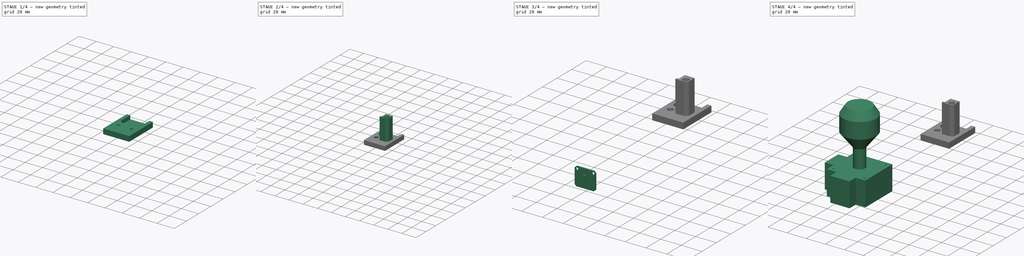
[diagram: build sequence overview — one tinted view per stage of 4, left to right]
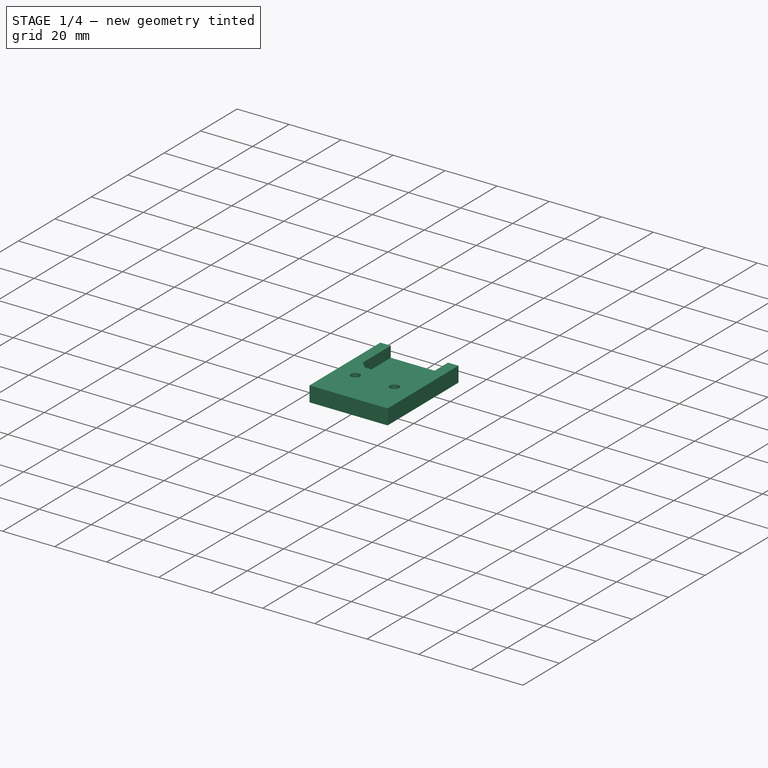
[diagram: stage 1 of 4 — iso view after this stage's code; geometry added in this stage tinted green]
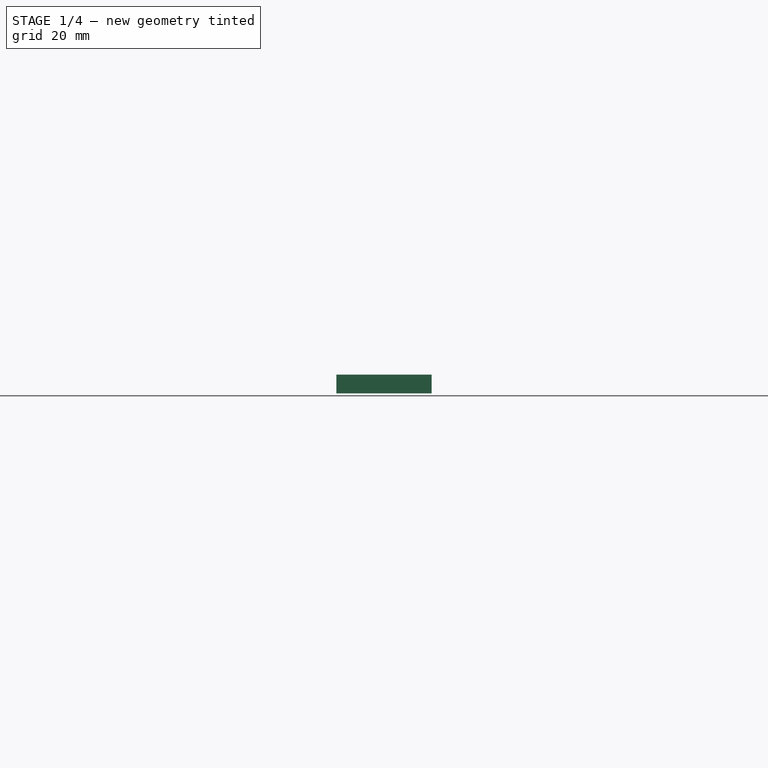
[diagram: stage 1 of 4 — front view after this stage's code; geometry added in this stage tinted green]
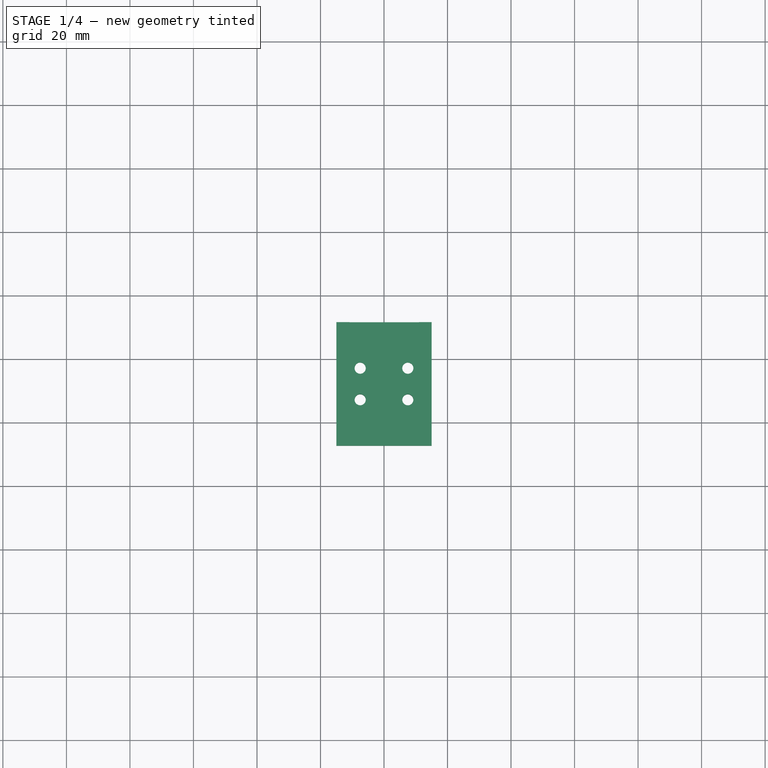
[diagram: stage 1 of 4 — top view after this stage's code; geometry added in this stage tinted green]
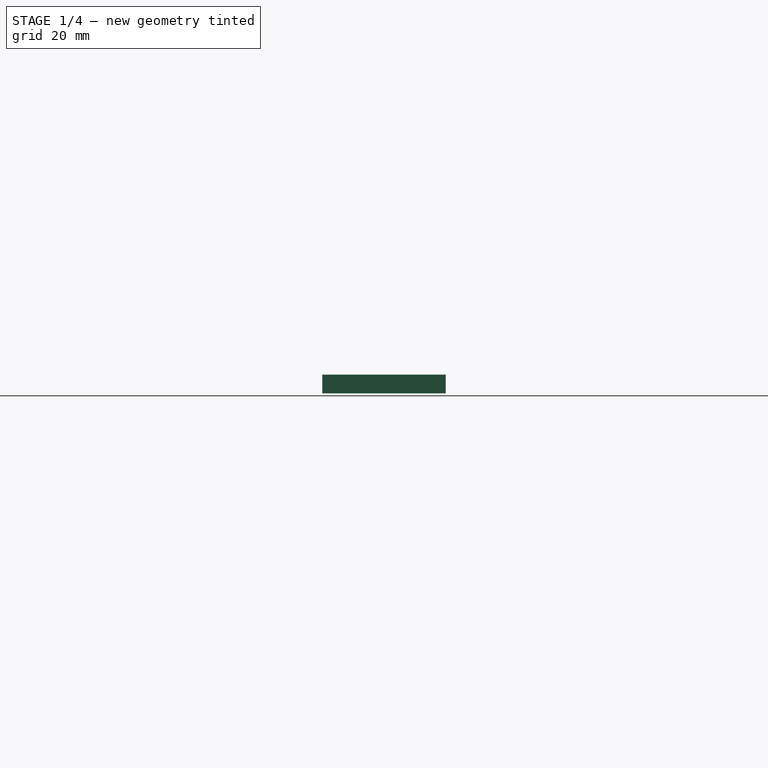
[diagram: stage 1 of 4 — right view after this stage's code; geometry added in this stage tinted green]
FCSTD DOCUMENT  (FreeCAD 0.20R29410 (Git))
Label: v6.1M
License: All rights reserved
LicenseURL: http://en.wikipedia.org/wiki/All_rights_reserved
objects: Sketcher::SketchObject×16, Spreadsheet::Sheet×11, PartDesign::Pad×9, PartDesign::Pocket×6, PartDesign::Body×5, PartDesign::LinearPattern×2, PartDesign::ShapeBinder×2, App::DocumentObjectGroup×2, PartDesign::Revolution×1
note: 57 computed .brp shape members not serialized (recipe doc carries the construction recipe); baked Part::Feature solids carry a one-line shape summary decoded from their .brp

FEATURE [PartDesign::Body] Body007  label="Y Sensor"
  Group = -> [Sketch017,Pad008,Sketch018,Pad009]
  Origin = -> Origin007
  Tip = -> Pad009
FEATURE [Spreadsheet::Sheet] Spreadsheet009  label="Screws"
  cells = A1=Screw Name; B1=M3x8; A2=Body Diameter Without Grooves; B2=2; A3=Body Diameter With Grooves; B3=2.6; A4=Body Diameter Sliding; B4==B3 + 0.1; A5=Body Height; B5==10.8 - B8; A6=Head Diameter; B6=5.4; A7=Head Diameter Sliding; B7==B6 + 0.2; A8=Head Height; B8=2.8
FEATURE [PartDesign::Pad] Pad010
  Direction = (0,0,1)
  Length = 5.9
  Length2 = 10
  Placement = pos=(0,0,8) rot=(0,0,1;0rad)
  Profile = -> Sketch016
  Type = 0
  expr: Length = <<XYC>>.Height
FEATURE [Spreadsheet::Sheet] Spreadsheet010  label="XYC"
  cells = A1=Height; B1(Height)==<<Screws>>.B8 + <<Rail>>.RSLH + 0.1; A2=Depth; B2(Depth)==<<Rail>>.HW + 10; A3=Width; B3(Width)==<<Rail>>.HL + 10; A5=Sensor Screw Distance; B5(SensorScrewDistance)=6; A6=Number Of Screws For X Axis; B6(NScrewsXAxis)=2
FEATURE [App::DocumentObjectGroup] Group  label="Sheets"
  Group = -> [Spreadsheet,Spreadsheet001,Spreadsheet002,Spreadsheet003,Spreadsheet004,Spreadsheet005,Spreadsheet006,Spreadsheet007,Spreadsheet008,Spreadsheet009,Spreadsheet010]
FEATURE [Sketcher::SketchObject] Sketch019
  ExternalGeometry = -> [Pad010]
  FullyConstrained = true
  MapMode = 5
  Placement = pos=(0,0,9.4) rot=(0,0,1;0rad)
  Support = -> [Pad010]
  expr: Constraints[15] = <<Sensor>>.ScrewDiameter + <<Sensor>>.ScrewToEdgeDistance
  expr: Constraints[16] = <<Sensor>>.ScrewDiameter + <<Sensor>>.ScrewToEdgeDistance
  expr: Constraints[17] = <<Sensor>>.ScrewDiameter + <<Sensor>>.ScrewToEdgeDistance
  expr: Constraints[19] = <<SensorPlateSketch>>.Constraints.ChampherWidthDistance
  expr: Constraints[1] = <<Sensor>>.ScrewDiameter
  sketch-geometry (8):
    g0: Circle CenterX=-7.5 CenterY=137.225 CenterZ=0 NormalX=0 NormalY=0 NormalZ=1 AngleXU=0 Radius=1.3
    g1: LineSegment StartX=-15 StartY=133.725 StartZ=0 EndX=15 EndY=133.725 EndZ=0
    g2: LineSegment StartX=-8.41162 StartY=133.725 StartZ=0 EndX=-11 EndY=136.313 EndZ=0
    g3: LineSegment StartX=-8.41162 StartY=133.725 StartZ=0 EndX=8.41162 EndY=133.725 EndZ=0
    g4: LineSegment StartX=8.41162 StartY=133.725 StartZ=0 EndX=11 EndY=136.313 EndZ=0
    g5: LineSegment StartX=11 StartY=136.313 StartZ=0 EndX=11 EndY=151.675 EndZ=0
    g6: LineSegment StartX=-11 StartY=136.313 StartZ=0 EndX=-11 EndY=151.675 EndZ=0
    g7: LineSegment StartX=-11 StartY=151.675 StartZ=0 EndX=11 EndY=151.675 EndZ=0
  constraints (24):
    c: Coincident(g0,g-3)
    c: Diameter(g0) = 2.6
    c: PointOnObject(g1,g-8)
    c: PointOnObject(g1,g-7)
    c: Horizontal(g1)
    c: PointOnObject(g2,g1)
    c: Coincident(g3,g2)
    c: PointOnObject(g3,g1)
    c: Coincident(g4,g3)
    c: Coincident(g5,g4)
    c: Vertical(g5)
    c: Coincident(g6,g2)
    c: Vertical(g6)
    c: Angle(g1,g2) = 2.35619
    c: Angle(g4,g1) = 2.35619
    c: DistanceY(g3,g-4) = 3.5
    c: DistanceX(g-4,g4) = 3.5
    c: DistanceX(g2,g0) = 3.5
    c: Horizontal(g4,g2)
    c: DistanceX(g3,g3) = 16.8232
    c: Horizontal(g6,g5)
    c: Horizontal(g6,g-8)
    c: Coincident(g7,g6)
    c: Coincident(g7,g5)
FEATURE [PartDesign::Pocket] Pocket005
  BaseFeature = -> Pad010
  Direction = (0,0,-1)
  Length = 4.2
  Length2 = 5
  Placement = pos=(0,0,8) rot=(0,0,1;0rad)
  Profile = -> Sketch019
  Type = 0
  expr: Length = <<Sensor>>.Depth + <<Screws>>.B8
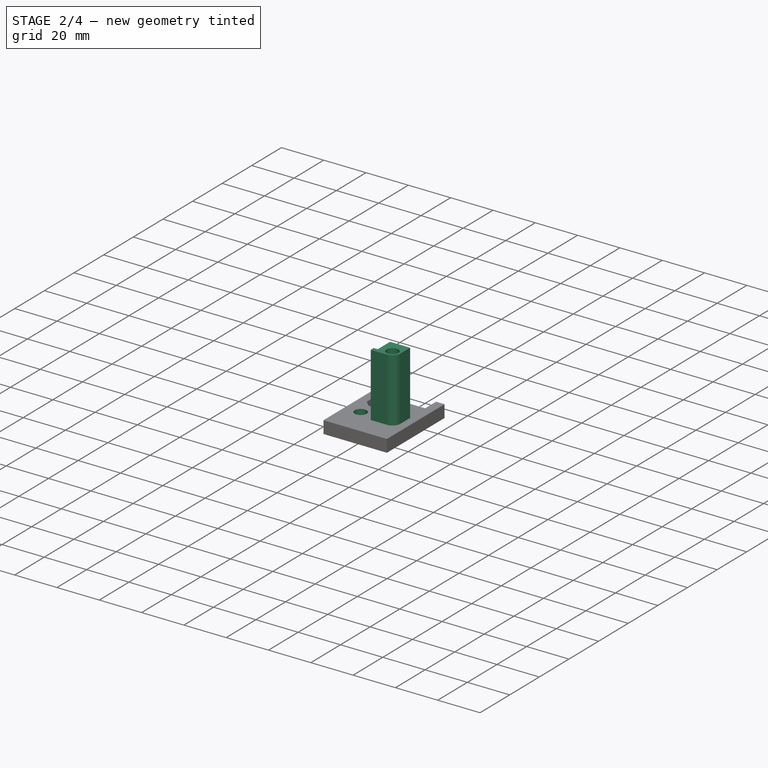
[diagram: stage 2 of 4 — iso view after this stage's code; geometry added in this stage tinted green]
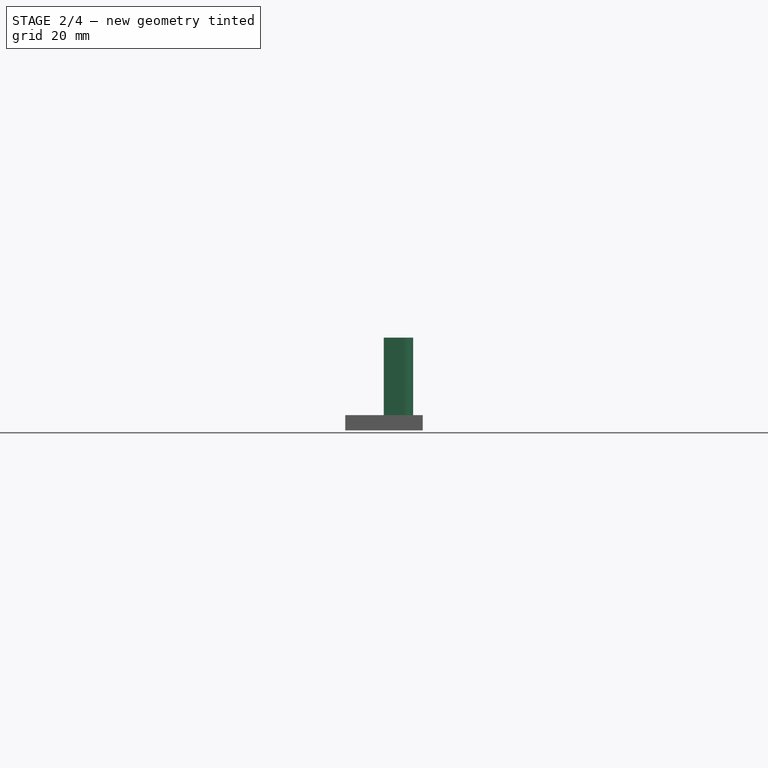
[diagram: stage 2 of 4 — front view after this stage's code; geometry added in this stage tinted green]
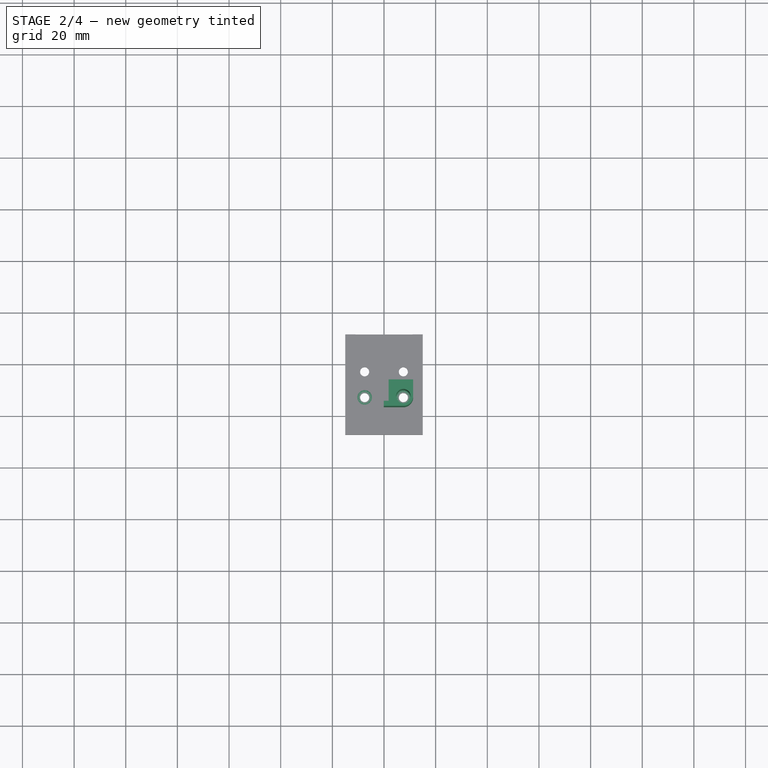
[diagram: stage 2 of 4 — top view after this stage's code; geometry added in this stage tinted green]
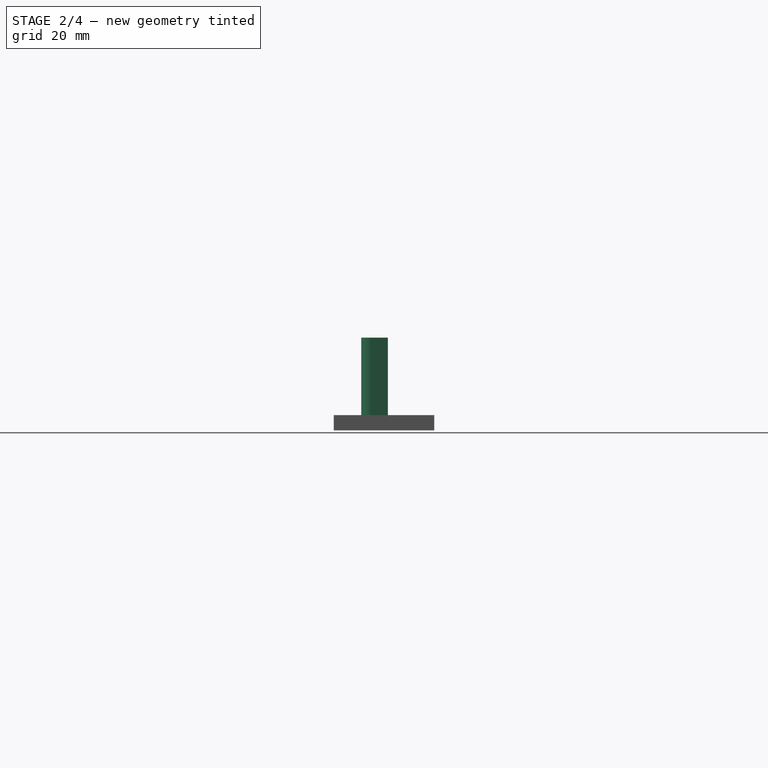
[diagram: stage 2 of 4 — right view after this stage's code; geometry added in this stage tinted green]
FEATURE [Sketcher::SketchObject] Sketch020
  ExternalGeometry = -> [Pocket005]
  FullyConstrained = true
  MapMode = 5
  Placement = pos=(0,0,9.4) rot=(0,0,1;0rad)
  Support = -> [Pocket005]
  expr: Constraints[3] = <<Screws>>.B7
  sketch-geometry (2):
    g0: Circle CenterX=-7.5 CenterY=127.225 CenterZ=0 NormalX=0 NormalY=0 NormalZ=1 AngleXU=0 Radius=2.8
    g1: Circle CenterX=7.5 CenterY=127.225 CenterZ=0 NormalX=0 NormalY=0 NormalZ=1 AngleXU=0 Radius=2.8
  constraints (4):
    c: Coincident(g0,g-4)
    c: Coincident(g1,g-3)
    c: Equal(g1,g0)
    c: Diameter(g1) = 5.6
FEATURE [PartDesign::Pocket] Pocket006
  BaseFeature = -> Pocket005
  Direction = (0,0,-1)
  Length = 2.8
  Length2 = 5
  Placement = pos=(0,0,8) rot=(0,0,1;0rad)
  Profile = -> Sketch020
  Type = 0
  expr: Length = <<Screws>>.B8
FEATURE [Sketcher::SketchObject] Sketch021
  ExternalGeometry = -> [Pocket006]
  FullyConstrained = true
  MapMode = 5
  Placement = pos=(0,0,9.4) rot=(0,0,1;0rad)
  Support = -> [Pocket006]
  expr: Constraints[29] = <<Rail>>.RB2HB - 0.1
  expr: Constraints[31] = <<Screws>>.B7 / 2
  expr: Constraints[7] = <<Rail>>.RW
  expr: Constraints[8] = <<Rail>>.RH
  sketch-geometry (14):
    g0: LineSegment StartX=4.7 StartY=140.025 StartZ=0 EndX=11.2 EndY=140.025 EndZ=0
    g1: LineSegment StartX=11.2 StartY=140.025 StartZ=0 EndX=11.2 EndY=131.025 EndZ=0
    g2: LineSegment StartX=11.2 StartY=131.025 StartZ=0 EndX=4.7 EndY=131.025 EndZ=0
    g3: LineSegment StartX=4.7 StartY=131.025 StartZ=0 EndX=4.7 EndY=140.025 EndZ=0
    g4: LineSegment StartX=9.3 StartY=129.025 StartZ=0 EndX=-7.5 EndY=129.025 EndZ=0
    g5: ArcOfCircle CenterX=-7.5 CenterY=127.225 CenterZ=0 NormalX=0 NormalY=0 NormalZ=1 AngleXU=0 Radius=1.8 StartAngle=1.5708 EndAngle=6.28319
    g6: LineSegment StartX=-7.5 StartY=127.225 StartZ=0 EndX=-7.5 EndY=129.025 EndZ=0
    g7: GeomPoint X=-7.5 Y=130.025 Z=0
    g8: LineSegment StartX=-5.7 StartY=127.225 StartZ=0 EndX=-5.7 EndY=133.725 EndZ=0
    g9: LineSegment StartX=9.3 StartY=129.025 StartZ=0 EndX=9.3 EndY=131.025 EndZ=0
    g10: LineSegment StartX=9.3 StartY=131.025 StartZ=0 EndX=11.2 EndY=131.025 EndZ=0
    g11: LineSegment StartX=11.2 StartY=131.025 StartZ=0 EndX=11.2 EndY=133.725 EndZ=0
    g12: LineSegment StartX=11.2 StartY=133.725 StartZ=0 EndX=-5.7 EndY=133.725 EndZ=0
    g13: Circle CenterX=-7.5 CenterY=127.225 CenterZ=0 NormalX=0 NormalY=0 NormalZ=1 AngleXU=0 Radius=2.8
  constraints (36):
    c: Coincident(g0,g1)
    c: Coincident(g1,g2)
    c: Coincident(g2,g3)
    c: Coincident(g3,g0)
    c: Horizontal(g0)
    c: Vertical(g1)
    c: Vertical(g3)
    c: DistanceY(g3,g3) = 9
    c: DistanceX(g2,g2) = 6.5
    c: Horizontal(g4)
    c: Coincident(g5,g-9)
    c: Tangent(g5,g4) = -1.5708
    c: Coincident(g6,g5)
    c: Coincident(g6,g4)
    c: PointOnObject(g7,g-9)
    c: PointOnObject(g7,g6)
    c: DistanceY(g4,g7) = 1
    c: Vertical(g8)
    c: Tangent(g8,g5) = -1.5708
    c: Coincident(g9,g4)
    c: PointOnObject(g9,g2)
    c: Vertical(g9)
    c: Coincident(g10,g1)
    c: PointOnObject(g11,g1)
    c: PointOnObject(g11,g-5)
    c: Coincident(g12,g11)
    c: Coincident(g12,g8)
    c: Coincident(g1,g11)
    c: Coincident(g9,g10)
    c: DistanceX(g10,g10) = 1.9
    c: Coincident(g13,g5)
    c: Radius(g13) = 2.8
    c: Horizontal(g10)
    c: Tangent(g3,g-8)
    c: Horizontal(g12)
    c: DistanceY(g4,g10) = 2
FEATURE [PartDesign::Pad] Pad011
  BaseFeature = -> Pocket006
  Direction = (0,0,1)
  Length = 30
  Length2 = 10
  Placement = pos=(0,0,8) rot=(0,0,1;0rad)
  Profile = -> Sketch021
  Type = 0
  expr: Length = 2 * <<Rail>>.RFSO + (<<XYC>>.NScrewsXAxis - 1) * <<Rail>>.RS2SO
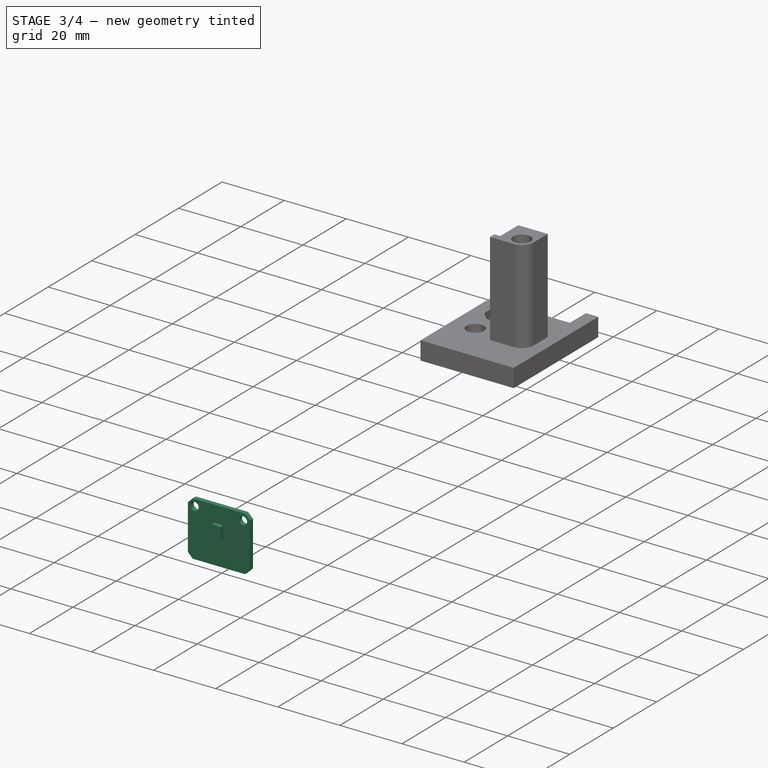
[diagram: stage 3 of 4 — iso view after this stage's code; geometry added in this stage tinted green]
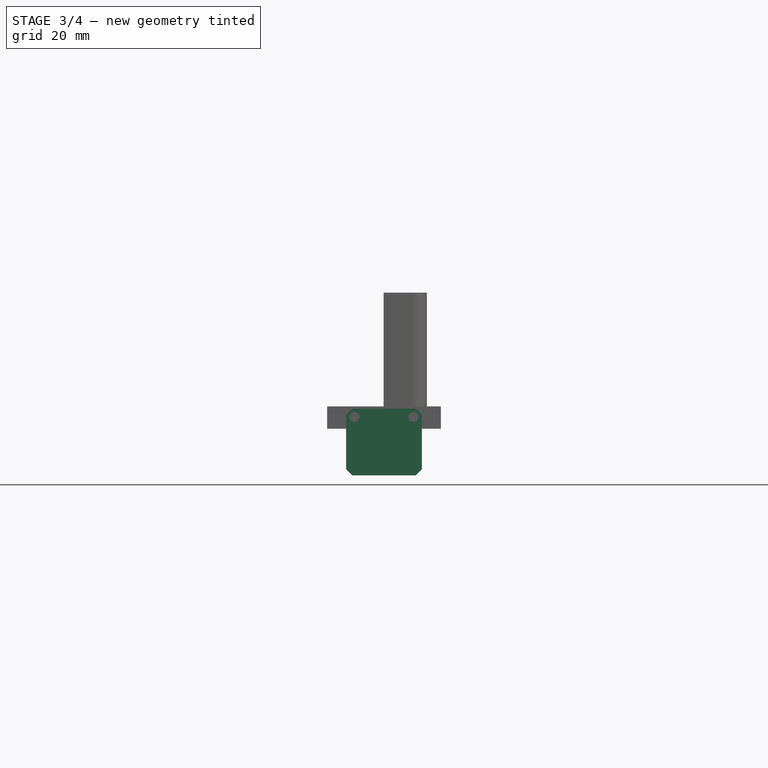
[diagram: stage 3 of 4 — front view after this stage's code; geometry added in this stage tinted green]
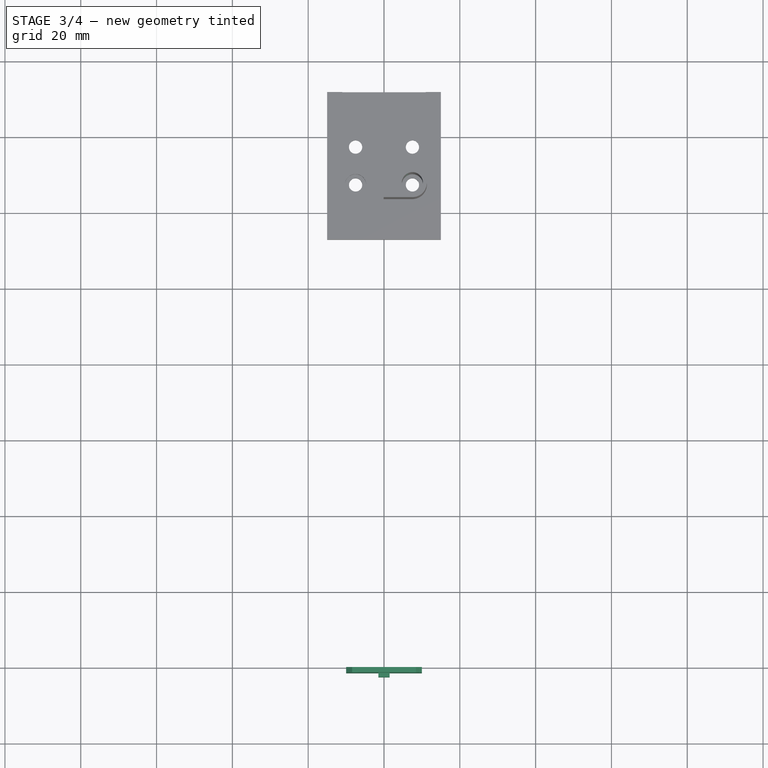
[diagram: stage 3 of 4 — top view after this stage's code; geometry added in this stage tinted green]
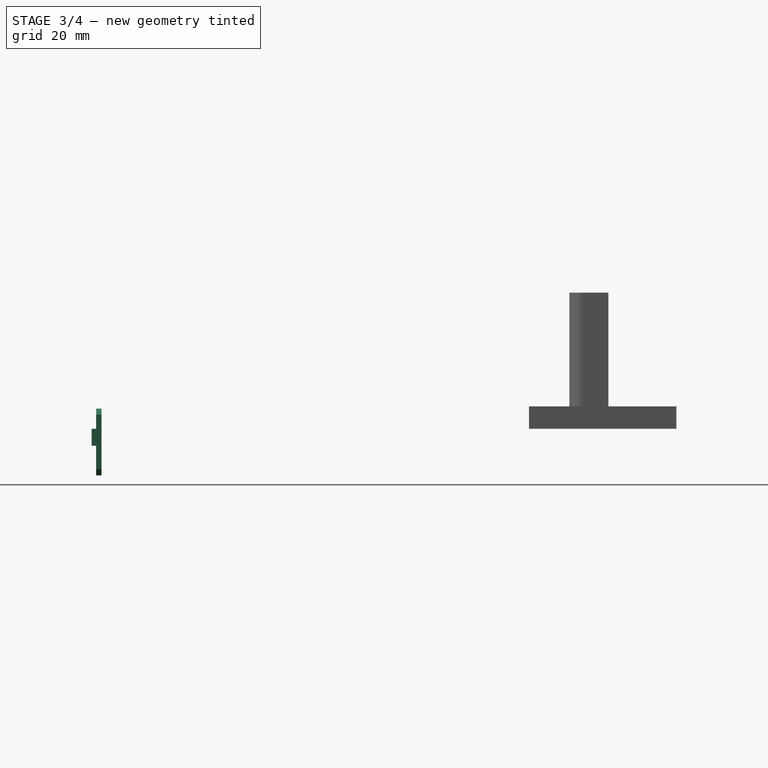
[diagram: stage 3 of 4 — right view after this stage's code; geometry added in this stage tinted green]
FEATURE [PartDesign::Body] Body003  label="Joystick Place Holder"
  Group = -> [Sketch003,Pad001,Sketch004,Revolution]
  Origin = -> Origin003
  Placement = pos=(0,-42.01,-15.5) rot=(0,0,1;1.5708rad)
  Tip = -> Revolution
  expr: .Placement.Base.z = -10.5 - <<XJC>>.TS
FEATURE [PartDesign::ShapeBinder] ShapeBinder
  Placement = pos=(0,0,8) rot=(0,0,1;0rad)
  Support = -> [Pad002]
  TraceSupport = false
FEATURE [Sketcher::SketchObject] Sketch010
  ExternalGeometry = -> [ShapeBinder]
  FullyConstrained = true
  MapMode = 5
  Placement = pos=(0,0,3.5) rot=(0,0,1;0rad)
  Support = -> [ShapeBinder]
  expr: Constraints[18] = <<Joystick>>.B12
  expr: Constraints[19] = <<Joystick>>.B11
  expr: Constraints[21] = <<Joystick>>.B7
  expr: Constraints[27] = <<Joystick>>.B7
  expr: Constraints[49] = <<Joystick>>.B10
  expr: Constraints[51] = <<Joystick>>.B10
  expr: Constraints[53] = <<Joystick>>.B10
  expr: Constraints[55] = <<Joystick>>.B10
  expr: Constraints[60] = <<Rail>>.B23
  expr: Constraints[61] = <<Rail>>.B23
  expr: Constraints[62] = <<Rail>>.B23
  expr: Constraints[63] = <<Rail>>.B23
  expr: Constraints[66] = <<Joystick>>.B19 + 2
  expr: Constraints[69] = <<General>>.B4
  sketch-geometry (35):
    g0: LineSegment StartX=-20 StartY=151.675 StartZ=0 EndX=11 EndY=151.675 EndZ=0
    g1: LineSegment StartX=11 StartY=151.675 StartZ=0 EndX=11 EndY=112.775 EndZ=0
    g2: LineSegment StartX=11 StartY=112.775 StartZ=0 EndX=-20 EndY=112.775 EndZ=0
    g3: LineSegment StartX=-20 StartY=112.775 StartZ=0 EndX=-20 EndY=151.675 EndZ=0
    g4: LineSegment StartX=11 StartY=152.425 StartZ=0 EndX=51.4 EndY=152.425 EndZ=0
    g5: LineSegment StartX=51.4 StartY=152.425 StartZ=0 EndX=51.4 EndY=112.025 EndZ=0
    g6: LineSegment StartX=51.4 StartY=112.025 StartZ=0 EndX=11 EndY=112.025 EndZ=0
    g7: LineSegment StartX=11 StartY=112.025 StartZ=0 EndX=11 EndY=152.425 EndZ=0
    g8: GeomPoint X=31.2 Y=152.425 Z=0
    g9: GeomPoint X=14.95 Y=152.425 Z=0
    g10: GeomPoint X=47.45 Y=152.425 Z=0
    g11: GeomPoint X=51.4 Y=148.475 Z=0
    g12: GeomPoint X=51.4 Y=115.975 Z=0
    g13: GeomPoint X=51.4 Y=132.225 Z=0
    g14: LineSegment StartX=51.4 StartY=148.475 StartZ=0 EndX=11 EndY=148.475 EndZ=0
    g15: LineSegment StartX=14.95 StartY=152.425 StartZ=0 EndX=14.95 EndY=112.025 EndZ=0
    g16: LineSegment StartX=47.45 StartY=152.425 StartZ=0 EndX=47.45 EndY=112.025 EndZ=0
    g17: LineSegment StartX=51.4 StartY=115.975 StartZ=0 EndX=11 EndY=115.975 EndZ=0
    g18: GeomPoint X=47.45 Y=148.475 Z=0
    g19: GeomPoint X=14.95 Y=148.475 Z=0
    g20: GeomPoint X=14.95 Y=115.975 Z=0
    g21: GeomPoint X=47.45 Y=115.975 Z=0
    g22: Circle CenterX=14.95 CenterY=148.475 CenterZ=0 NormalX=0 NormalY=0 NormalZ=1 AngleXU=0 Radius=1
    g23: Circle CenterX=14.95 CenterY=115.975 CenterZ=0 NormalX=0 NormalY=0 NormalZ=1 AngleXU=0 Radius=1
    g24: Circle CenterX=47.45 CenterY=148.475 CenterZ=0 NormalX=0 NormalY=0 NormalZ=1 AngleXU=0 Radius=1
    g25: Circle CenterX=47.45 CenterY=115.975 CenterZ=0 NormalX=0 NormalY=0 NormalZ=1 AngleXU=0 Radius=1
    g26: Circle CenterX=7.5 CenterY=137.225 CenterZ=0 NormalX=0 NormalY=0 NormalZ=1 AngleXU=0 Radius=1.75
    g27: Circle CenterX=-7.5 CenterY=137.225 CenterZ=0 NormalX=0 NormalY=0 NormalZ=1 AngleXU=0 Radius=1.75
    g28: Circle CenterX=-7.5 CenterY=127.225 CenterZ=0 NormalX=0 NormalY=0 NormalZ=1 AngleXU=0 Radius=1.75
    g29: Circle CenterX=7.5 CenterY=127.225 CenterZ=0 NormalX=0 NormalY=0 NormalZ=1 AngleXU=0 Radius=1.75
    g30: GeomPoint X=31.2 Y=132.225 Z=0
    g31: Circle CenterX=31.2 CenterY=132.225 CenterZ=0 NormalX=0 NormalY=0 NormalZ=1 AngleXU=0 Radius=18.5
    g32: GeomPoint X=11 Y=132.225 Z=0
    g33: LineSegment StartX=11 StartY=112.025 StartZ=0 EndX=11 EndY=112.775 EndZ=0
    g34: LineSegment StartX=11 StartY=152.425 StartZ=0 EndX=11 EndY=151.675 EndZ=0
  constraints (75):
    c: Coincident(g0,g1)
    c: Coincident(g1,g2)
    c: Coincident(g2,g3)
    c: Coincident(g3,g0)
    c: Horizontal(g0)
    c: Horizontal(g2)
    c: Vertical(g1)
    c: Vertical(g3)
    c: DistanceY(g-5,g0) = 5
    c: DistanceY(g2,g-6) = 5
    c: Coincident(g4,g5)
    c: Coincident(g5,g6)
    c: Coincident(g6,g7)
    c: Coincident(g7,g4)
    c: Horizontal(g4)
    c: Horizontal(g6)
    c: Vertical(g5)
    c: Vertical(g7)
    c: DistanceY(g7,g7) = 40.4
    c: DistanceX(g4,g4) = 40.4
    c: Symmetric(g4,g4,g8)
    c: DistanceX(g9,g10) = 32.5
    c: DistanceY(g10,g9) = 0
    c: Symmetric(g9,g10,g8)
    c: Symmetric(g4,g5,g13)
    c: Symmetric(g11,g12,g13)
    c: DistanceX(g12,g11) = 0
    c: DistanceY(g12,g11) = 32.5
    c: Coincident(g14,g11)
    c: PointOnObject(g14,g7)
    c: Horizontal(g14)
    c: Coincident(g15,g9)
    c: PointOnObject(g15,g6)
    c: Vertical(g15)
    c: Coincident(g16,g10)
    c: PointOnObject(g16,g6)
    c: Vertical(g16)
    c: Coincident(g17,g12)
    c: PointOnObject(g17,g7)
    c: Horizontal(g17)
    c: PointOnObject(g18,g16)
    c: PointOnObject(g18,g14)
    c: PointOnObject(g19,g14)
    c: PointOnObject(g20,g17)
    c: PointOnObject(g21,g17)
    c: PointOnObject(g21,g16)
    c: PointOnObject(g20,g15)
    c: PointOnObject(g19,g15)
    c: Coincident(g22,g19)
    c: Diameter(g22) = 2
    c: Coincident(g23,g20)
    c: Diameter(g23) = 2
    c: Coincident(g24,g18)
    c: Diameter(g24) = 2
    c: Coincident(g25,g21)
    c: Diameter(g25) = 2
    c: Coincident(g26,g-9)
    c: Coincident(g27,g-7)
    c: Coincident(g28,g-8)
    c: Coincident(g29,g-10)
    c: Diameter(g27) = 3.5
    c: Diameter(g26) = 3.5
    c: Diameter(g29) = 3.5
    c: Diameter(g28) = 3.5
    c: Symmetric(g6,g4,g30)
    c: Coincident(g31,g30)
    c: Diameter(g31) = 37
    c: Symmetric(g0,g2,g32)
    c: Symmetric(g4,g6,g32)
    c: DistanceX(g-5,g0) = 1
    c: Coincident(g33,g6)
    c: Coincident(g33,g2)
    c: Coincident(g34,g4)
    c: Coincident(g34,g0)
    c: DistanceX(g0,g-5) = 30
FEATURE [PartDesign::Pad] Pad005
  Direction = (0,0,1)
  Length = 3
  Length2 = 10
  Placement = pos=(0,0,8) rot=(0,0,1;0rad)
  Profile = -> Sketch010
  Type = 0
FEATURE [Sketcher::SketchObject] Sketch011
  ExternalGeometry = -> [ShapeBinder]
  FullyConstrained = true
  MapMode = 5
  Placement = pos=(0,0,3.5) rot=(1,0,0;3.14159rad)
  Support = -> [Pad005]
  sketch-geometry (4):
    g0: LineSegment StartX=-10.5 StartY=-117.275 StartZ=0 EndX=10.5 EndY=-117.275 EndZ=0
    g1: LineSegment StartX=10.5 StartY=-117.275 StartZ=0 EndX=10.5 EndY=-147.175 EndZ=0
    g2: LineSegment StartX=10.5 StartY=-147.175 StartZ=0 EndX=-10.5 EndY=-147.175 EndZ=0
    g3: LineSegment StartX=-10.5 StartY=-147.175 StartZ=0 EndX=-10.5 EndY=-117.275 EndZ=0
  constraints (13):
    c: Coincident(g0,g1)
    c: Coincident(g1,g2)
    c: Coincident(g2,g3)
    c: Coincident(g3,g0)
    c: Horizontal(g0)
    c: Horizontal(g2)
    c: Vertical(g1)
    c: Vertical(g3)
    c: DistanceX(g-6,g-6) = 20  'Width'
    c: DistanceX(g-9,g0) = 0.5
    c: DistanceX(g0,g-10) = 0.5
    c: DistanceY(g-9,g0) = 0.5
    c: DistanceY(g1,g-9) = 0.5
FEATURE [PartDesign::ShapeBinder] ReferencePad007
  Placement = pos=(0,0,8) rot=(0,0,1;0rad)
  Support = -> [Pad002]
  TraceSupport = false
FEATURE [Sketcher::SketchObject] Sketch016
  ExternalGeometry = -> [ReferencePad007]
  FullyConstrained = true
  MapMode = 5
  Placement = pos=(0,0,3.5) rot=(0,0,1;0rad)
  Support = -> [ReferencePad007]
  expr: Constraints[17] = <<XYC>>.Width
  expr: Constraints[18] = <<XYC>>.Depth
  expr: Constraints[4] = <<Rail>>.B23
  expr: Constraints[5] = <<Rail>>.B23
  expr: Constraints[6] = <<Rail>>.B23
  expr: Constraints[7] = <<Rail>>.B23
  sketch-geometry (9):
    g0: Circle CenterX=-7.5 CenterY=137.225 CenterZ=0 NormalX=0 NormalY=0 NormalZ=1 AngleXU=0 Radius=1.75
    g1: Circle CenterX=-7.5 CenterY=127.225 CenterZ=0 NormalX=0 NormalY=0 NormalZ=1 AngleXU=0 Radius=1.75
    g2: Circle CenterX=7.5 CenterY=137.225 CenterZ=0 NormalX=0 NormalY=0 NormalZ=1 AngleXU=0 Radius=1.75
    g3: Circle CenterX=7.5 CenterY=127.225 CenterZ=0 NormalX=0 NormalY=0 NormalZ=1 AngleXU=0 Radius=1.75
    g4: LineSegment StartX=-15 StartY=112.775 StartZ=0 EndX=15 EndY=112.775 EndZ=0
    g5: LineSegment StartX=15 StartY=112.775 StartZ=0 EndX=15 EndY=151.675 EndZ=0
    g6: LineSegment StartX=15 StartY=151.675 StartZ=0 EndX=-15 EndY=151.675 EndZ=0
    g7: LineSegment StartX=-15 StartY=151.675 StartZ=0 EndX=-15 EndY=112.775 EndZ=0
    g8: GeomPoint X=-1.4e-15 Y=132.225 Z=0
  constraints (20):
    c: Coincident(g0,g-8)
    c: Coincident(g1,g-7)
    c: Coincident(g2,g-5)
    c: Coincident(g3,g-6)
    c: Diameter(g3) = 3.5
    c: Diameter(g2) = 3.5
    c: Diameter(g0) = 3.5
    c: Diameter(g1) = 3.5
    c: Coincident(g4,g5)
    c: Coincident(g5,g6)
    c: Coincident(g6,g7)
    c: Coincident(g7,g4)
    c: Horizontal(g4)
    c: Horizontal(g6)
    c: Vertical(g5)
    c: Vertical(g7)
    c: Symmetric(g-3,g-4,g8)
    c: DistanceY(g7,g7) = 38.9
    c: DistanceX(g4,g4) = 30
    c: Symmetric(g4,g6,g8)
FEATURE [Sketcher::SketchObject] Sketch017  label="SensorPlateSketch"
  FullyConstrained = true
  MapMode = 5
  Placement = pos=(0,0,0) rot=(1,0,0;1.5708rad)
  Support = -> [XZ_Plane007]
  expr: Constraints[20] = <<Sensor>>.Height
  expr: Constraints[21] = <<Sensor>>.Width
  expr: Constraints[34] = Spreadsheet001.B11
  expr: Constraints[43] = Spreadsheet001.B13
  expr: Constraints[46] = <<Sensor>>.ScrewToEdgeDistance
  expr: Constraints[56] = <<Sensor>>.ScrewToEdgeDistance
  expr: Constraints[63] = Spreadsheet001.B13
  expr: Constraints[66] = <<Sensor>>.ScrewToEdgeDistance
  expr: Constraints[69] = <<Sensor>>.ScrewToEdgeDistance
  sketch-geometry (28):
    g0: LineSegment StartX=-10 StartY=8.8 StartZ=0 EndX=10 EndY=8.8 EndZ=0
    g1: LineSegment StartX=10 StartY=8.8 StartZ=0 EndX=10 EndY=-8.8 EndZ=0
    g2: LineSegment StartX=10 StartY=-8.8 StartZ=0 EndX=-10 EndY=-8.8 EndZ=0
    g3: LineSegment StartX=-10 StartY=-8.8 StartZ=0 EndX=-10 EndY=8.8 EndZ=0
    g4: LineSegment StartX=-8.41162 StartY=8.8 StartZ=0 EndX=-10 EndY=7.21162 EndZ=0
    g5: LineSegment StartX=10 StartY=-7.21162 StartZ=0 EndX=8.41162 EndY=-8.8 EndZ=0
    g6: LineSegment StartX=8.41162 StartY=8.8 StartZ=0 EndX=10 EndY=7.21162 EndZ=0
    g7: LineSegment StartX=-10 StartY=-7.21162 StartZ=0 EndX=-8.41162 EndY=-8.8 EndZ=0
    g8: GeomPoint X=9.20581 Y=8.00581 Z=0
    g9: GeomPoint X=-9.20581 Y=-8.00581 Z=0
    g10: LineSegment StartX=9.20581 StartY=8.00581 StartZ=0 EndX=-9.20581 EndY=-8.00581 EndZ=0
    g11: LineSegment StartX=-9.20581 StartY=8.00581 StartZ=0 EndX=9.20581 EndY=-8.00581 EndZ=0
    g12: GeomPoint X=0 Y=0 Z=0
    g13: LineSegment StartX=-8.41162 StartY=8.8 StartZ=0 EndX=8.41162 EndY=8.8 EndZ=0
    g14: LineSegment StartX=-10 StartY=-7.21162 StartZ=0 EndX=-10 EndY=7.21162 EndZ=0
    g15: LineSegment StartX=10 StartY=7.21162 StartZ=0 EndX=10 EndY=-7.21162 EndZ=0
    g16: LineSegment StartX=8.41162 StartY=-8.8 StartZ=0 EndX=-8.41162 EndY=-8.8 EndZ=0
    g17: Circle CenterX=7.8 CenterY=6.6 CenterZ=0 NormalX=0 NormalY=0 NormalZ=1 AngleXU=0 Radius=1.3
    g18: GeomPoint X=9.1 Y=6.6 Z=0
    g19: GeomPoint X=10 Y=6.6 Z=0
    g20: LineSegment StartX=7.8 StartY=6.6 StartZ=0 EndX=10 EndY=6.6 EndZ=0
    g21: LineSegment StartX=7.8 StartY=6.6 StartZ=0 EndX=7.8 EndY=8.8 EndZ=0
    g22: GeomPoint X=7.8 Y=7.9 Z=0
    g23: LineSegment StartX=-7.8 StartY=8.8 StartZ=0 EndX=-7.8 EndY=6.6 EndZ=0
    g24: LineSegment StartX=-10 StartY=6.6 StartZ=0 EndX=-7.8 EndY=6.6 EndZ=0
    g25: Circle CenterX=-7.8 CenterY=6.6 CenterZ=0 NormalX=0 NormalY=0 NormalZ=1 AngleXU=0 Radius=1.3
    g26: GeomPoint X=-7.8 Y=7.9 Z=0
    g27: GeomPoint X=-9.1 Y=6.6 Z=0
  constraints (72):
    c: Coincident(g0,g1)
    c: Coincident(g1,g2)
    c: Coincident(g2,g3)
    c: Coincident(g3,g0)
    c: Horizontal(g0)
    c: Horizontal(g2)
    c: Vertical(g1)
    c: Vertical(g3)
    c: PointOnObject(g4,g0)
    c: PointOnObject(g4,g3)
    c: Angle(g-1,g4) = 0.785398
    c: PointOnObject(g5,g1)
    c: PointOnObject(g5,g2)
    c: Parallel(g5,g4)
    c: PointOnObject(g6,g0)
    c: PointOnObject(g6,g1)
    c: PointOnObject(g7,g3)
    c: PointOnObject(g7,g2)
    c: Parallel(g7,g6)
    c: Perpendicular(g7,g4)
    c: DistanceY(g1,g1) = 17.6
    c: DistanceX(g0,g0) = 20
    c: Symmetric(g7,g7,g9)
    c: Symmetric(g6,g6,g8)
    c: Coincident(g10,g8)
    c: Coincident(g10,g9)
    c: Symmetric(g4,g4,g11)
    c: Symmetric(g5,g5,g11)
    c: PointOnObject(g12,g10)
    c: PointOnObject(g12,g11)
    c: Coincident(g12,g-1)
    c: DistanceX(g6,g5) = 0
    c: DistanceX(g7,g4) = 0
    c: DistanceY(g6,g4) = 0
    c: Distance(g8,g9) = 24.4
    c: Coincident(g13,g4)
    c: Coincident(g13,g6)
    c: Coincident(g14,g7)
    c: Coincident(g14,g4)
    c: Coincident(g15,g6)
    c: Coincident(g15,g5)
    c: Coincident(g16,g5)
    c: Coincident(g16,g7)
    c: Diameter(g17) = 2.6
    c: PointOnObject(g18,g17)
    c: PointOnObject(g19,g15)
    c: DistanceX(g18,g19) = 0.9
    c: Coincident(g20,g17)
    c: Coincident(g20,g19)
    c: PointOnObject(g18,g20)
    c: Horizontal(g20)
    c: Coincident(g21,g17)
    c: PointOnObject(g21,g13)
    c: Vertical(g21)
    c: PointOnObject(g22,g17)
    c: PointOnObject(g22,g21)
    c: Distance(g22,g21) = 0.9
    c: PointOnObject(g23,g13)
    c: PointOnObject(g24,g14)
    c: Coincident(g24,g23)
    c: Horizontal(g24)
    c: Vertical(g23)
    c: Coincident(g25,g23)
    c: Diameter(g25) = 2.6
    c: PointOnObject(g26,g25)
    c: PointOnObject(g26,g23)
    c: DistanceY(g26,g23) = 0.9
    c: PointOnObject(g27,g25)
    c: PointOnObject(g27,g24)
    c: DistanceX(g24,g27) = 0.9
    c: DistanceX(g25,g17) = 15.6
    c: DistanceX(g7,g5) = 16.8232  'ChampherWidthDistance'
FEATURE [PartDesign::Pad] Pad008  label="Sensor Plate"
  Direction = (0,-1,-2e-16)
  Length = 1.4
  Length2 = 10
  Placement = pos=(0,0,0) rot=(1,0,0;1.5708rad)
  Profile = -> Sketch017
  Type = 0
  expr: Length = <<Sensor>>.Depth
FEATURE [Sketcher::SketchObject] Sketch018
  ExternalGeometry = -> [Pad008]
  FullyConstrained = true
  MapMode = 5
  Placement = pos=(0,-1.4,0) rot=(1,0,0;1.5708rad)
  Support = -> [Pad008]
  expr: Constraints[10] = <<Sensor>>.B5
  expr: Constraints[11] = <<Sensor>>.B6
  expr: Constraints[8] = <<Sensor>>.B7
  expr: Constraints[9] = <<Sensor>>.B8
  sketch-geometry (4):
    g0: LineSegment StartX=-1.5 StartY=3.5 StartZ=0 EndX=1.5 EndY=3.5 EndZ=0
    g1: LineSegment StartX=1.5 StartY=3.5 StartZ=0 EndX=1.5 EndY=-1 EndZ=0
    g2: LineSegment StartX=1.5 StartY=-1 StartZ=0 EndX=-1.5 EndY=-1 EndZ=0
    g3: LineSegment StartX=-1.5 StartY=-1 StartZ=0 EndX=-1.5 EndY=3.5 EndZ=0
  constraints (12):
    c: Coincident(g0,g1)
    c: Coincident(g1,g2)
    c: Coincident(g2,g3)
    c: Coincident(g3,g0)
    c: Horizontal(g0)
    c: Horizontal(g2)
    c: Vertical(g1)
    c: Vertical(g3)
    c: DistanceY(g-6,g0) = 12.3
    c: DistanceY(g1,g-5) = 9.8
    c: DistanceX(g-4,g1) = 11.5
    c: DistanceX(g2,g-3) = 11.5
FEATURE [PartDesign::Pad] Pad009  label="Sensor SMD"
  BaseFeature = -> Pad008
  Direction = (0,-1,-2e-16)
  Length = 1.2
  Length2 = 10
  Placement = pos=(0,0,0) rot=(1,0,0;1.5708rad)
  Profile = -> Sketch018
  Type = 0
  expr: Length = Spreadsheet001.B10 - <<Sensor>>.Depth
FEATURE [Sketcher::SketchObject] Sketch022
  ExternalGeometry = -> [Pad011]
  FullyConstrained = true
  MapMode = 5
  Placement = pos=(1.8,-4e-16,8) rot=(-0.57735,0.57735,0.57735;4.18879rad)
  Support = -> [Pad011]
  expr: Constraints[3] = <<Screws>>.B3
  expr: Constraints[4] = <<Screws>>.B3
  expr: Constraints[5] = <<Rail>>.RS2SO
  expr: Constraints[6] = <<Rail>>.RFSO
  expr: Constraints[7] = <<Rail>>.RW / 2
  sketch-geometry (3):
    g0: LineSegment StartX=-129.925 StartY=31.4 StartZ=0 EndX=-129.925 EndY=1.4 EndZ=0
    g1: Circle CenterX=-129.925 CenterY=26.4 CenterZ=0 NormalX=0 NormalY=0 NormalZ=1 AngleXU=0 Radius=1.3
    g2: Circle CenterX=-129.925 CenterY=6.4 CenterZ=0 NormalX=0 NormalY=0 NormalZ=1 AngleXU=0 Radius=1.3
  constraints (10):
    c: Vertical(g0)
    c: PointOnObject(g1,g0)
    c: PointOnObject(g2,g0)
    c: Diameter(g2) = 2.6
    c: Diameter(g1) = 2.6
    c: DistanceY(g2,g1) = 20
    c: DistanceY(g0,g2) = 5
    c: DistanceX(g0,g-4) = 4.5
    c: Horizontal(g0,g-3)
    c: Horizontal(g0,g-4)
FEATURE [PartDesign::Pocket] Pocket007
  BaseFeature = -> Pad011
  Direction = (1,1,1)
  Length = 4.6
  Length2 = 5
  Placement = pos=(0,0,8) rot=(0,0,1;0rad)
  Profile = -> Sketch022
  Type = 0
  expr: Length = <<Rail>>.RSLR
FEATURE [PartDesign::Body] Body006  label="XYConnector"
  Group = -> [ReferencePad007,Sketch016,Pad010,Sketch019,Pocket005,Sketch020,Pocket006,Sketch021,Pad011,Sketch022,Pocket007]
  Origin = -> Origin006
  Tip = -> Pocket007
FEATURE [PartDesign::Body] Body004  label="JoystickXConnector"
  Group = -> [ShapeBinder,Sketch010,Pad005,Sketch011,Sketch023,Pad012,Pocket004]
  Origin = -> Origin004
  Placement = pos=(-132,2.9e-14,-2) rot=(0,0,-1;1.5708rad)
  Tip = -> Pad012
FEATURE [PartDesign::Pocket] Pocket004
  BaseFeature = -> Pad012
  Direction = (1,1,1)
  Length = 2
  Length2 = 5
  Placement = pos=(0,0,8) rot=(0,0,1;0rad)
  Profile = -> Sketch011
  Type = 0
FEATURE [App::DocumentObjectGroup] Group001  label="Parts"
  Group = -> [Body,Body003,Body004,Body006,Body007]
FEATURE [Sketcher::SketchObject] Sketch023
  ExternalGeometry = -> [Pocket004]
  FullyConstrained = true
  MapMode = 5
  Placement = pos=(0,0,3.5) rot=(1,0,0;3.14159rad)
  Support = -> [Pocket004]
  expr: Constraints[9] = <<Rail>>.RW
  sketch-geometry (8):
    g0: LineSegment StartX=-4.5 StartY=-151.675 StartZ=0 EndX=4.5 EndY=-151.675 EndZ=0
    g1: LineSegment StartX=4.5 StartY=-151.675 StartZ=0 EndX=4.5 EndY=-147.175 EndZ=0
    g2: LineSegment StartX=4.5 StartY=-147.175 StartZ=0 EndX=-4.5 EndY=-147.175 EndZ=0
    g3: LineSegment StartX=-4.5 StartY=-147.175 StartZ=0 EndX=-4.5 EndY=-151.675 EndZ=0
    g4: LineSegment StartX=-20 StartY=-151.675 StartZ=0 EndX=-4.5 EndY=-151.675 EndZ=0
    g5: LineSegment StartX=-4.5 StartY=-151.675 StartZ=0 EndX=-4.5 EndY=-147.175 EndZ=0
    g6: LineSegment StartX=-4.5 StartY=-147.175 StartZ=0 EndX=-20 EndY=-147.175 EndZ=0
    g7: LineSegment StartX=-20 StartY=-147.175 StartZ=0 EndX=-20 EndY=-151.675 EndZ=0
  constraints (21):
    c: Coincident(g0,g1)
    c: Coincident(g1,g2)
    c: Coincident(g2,g3)
    c: Coincident(g3,g0)
    c: Horizontal(g0)
    c: Vertical(g1)
    c: Vertical(g3)
    c: PointOnObject(g0,g-3)
    c: PointOnObject(g1,g-4)
    c: DistanceX(g2,g2) = 9
    c: Symmetric(g2,g1,g-2)
    c: Coincident(g4,g5)
    c: Coincident(g5,g6)
    c: Coincident(g6,g7)
    c: Coincident(g7,g4)
    c: Horizontal(g4)
    c: Horizontal(g6)
    c: Vertical(g5)
    c: Vertical(g7)
    c: Coincident(g4,g-3)
    c: Coincident(g5,g2)
FEATURE [PartDesign::Pad] Pad012
  BaseFeature = -> Pad005
  Direction = (0,0,-1)
  Length = 12
  Length2 = 100
  Placement = pos=(0,0,8) rot=(0,0,1;0rad)
  Profile = -> Sketch023
  Type = 0
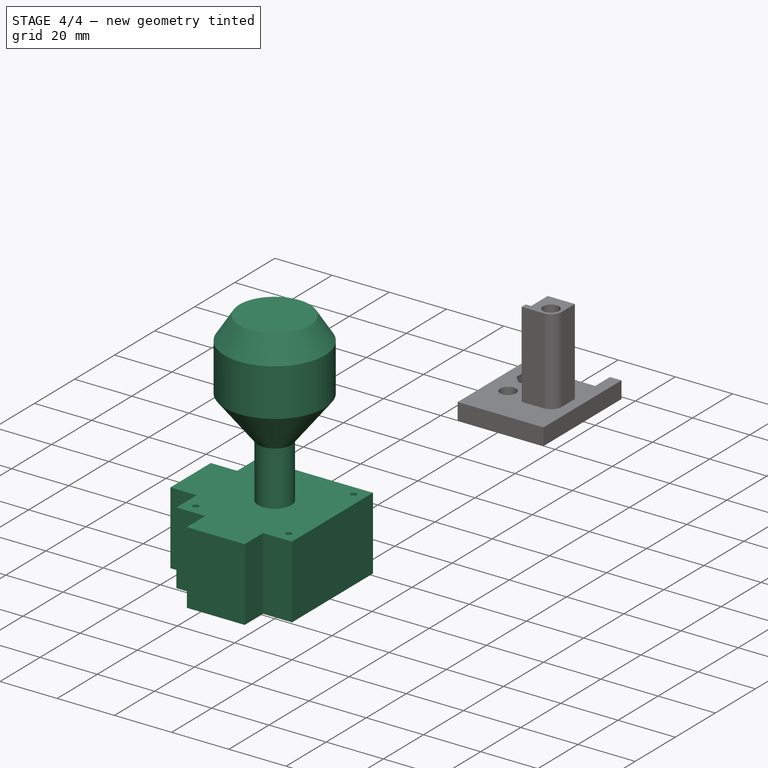
[diagram: stage 4 of 4 — iso view after this stage's code; geometry added in this stage tinted green]
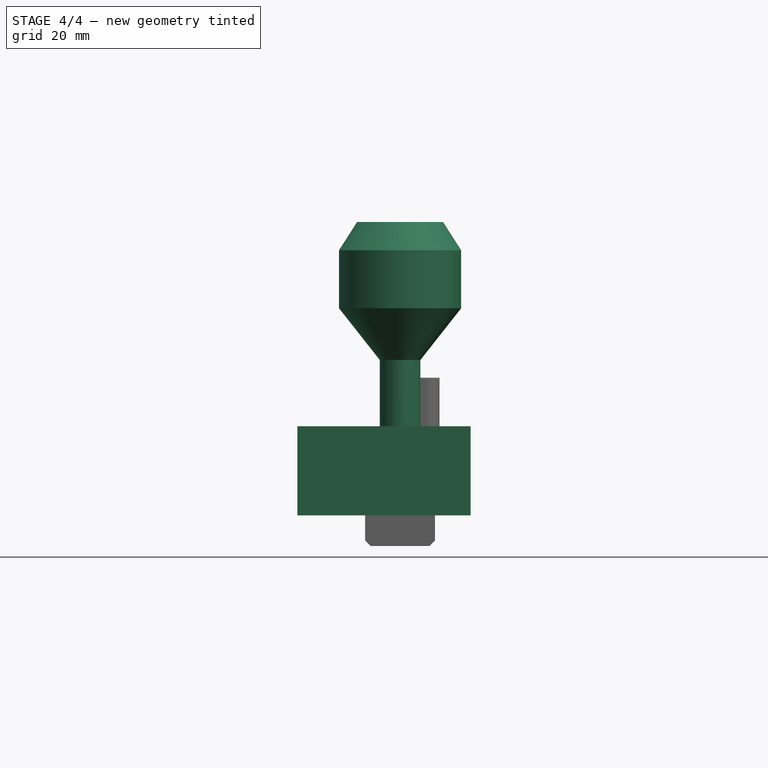
[diagram: stage 4 of 4 — front view after this stage's code; geometry added in this stage tinted green]
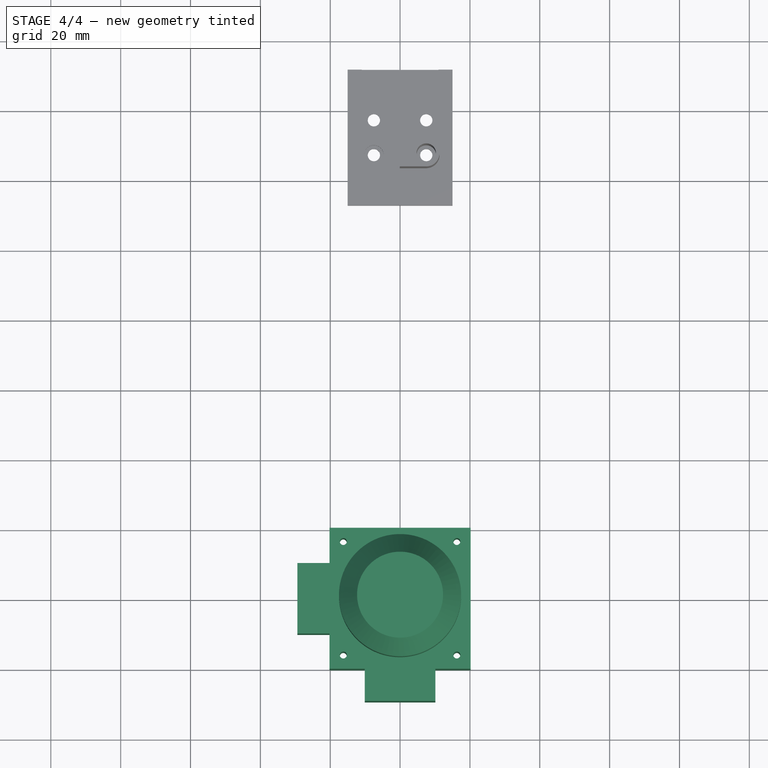
[diagram: stage 4 of 4 — top view after this stage's code; geometry added in this stage tinted green]
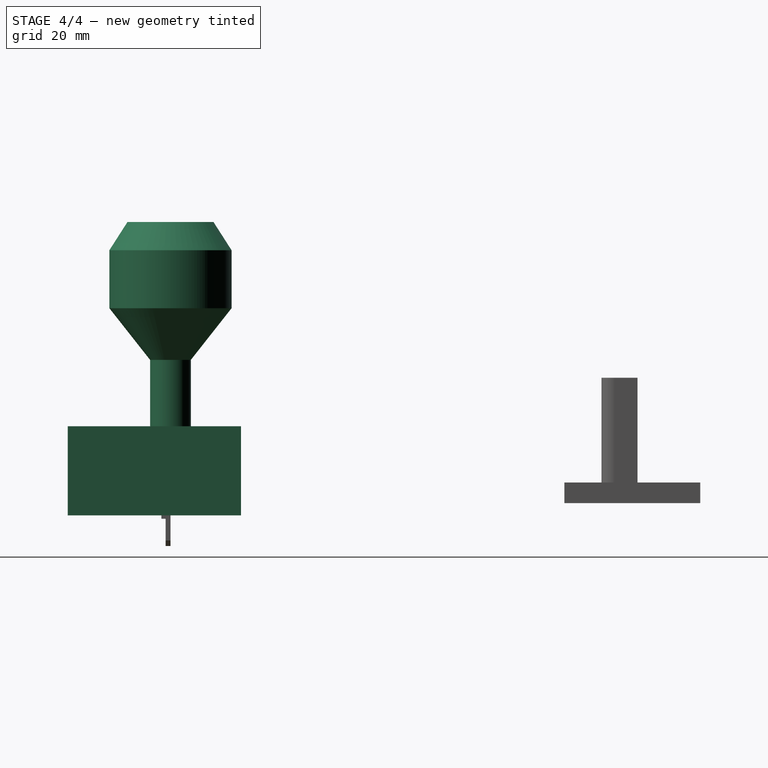
[diagram: stage 4 of 4 — right view after this stage's code; geometry added in this stage tinted green]
FEATURE [Spreadsheet::Sheet] Spreadsheet  label="Rail"
  cells = A2=Axial Offset; B2(Axial_Offset)==(RL - HL * 0.5) * 0.5; A3=Screw; B3(Screw)=M 3x0.5Px8L; A4=Name; B4(Name)=MGN9C; A5=Screw Length; B5(SL)=8; A6=Rail Length RL (Axial); B6(RL)=250; A7=Rail Width RW; B7(RW)=9; A8=Rail Height RH; B8(RH)=6.5; A9=Rail First Screw Offset; B9(RFSO)=5; A10=Rail Screw To Screw Offset; B10(RS2SO)=20; A11=Rail Screw Head Inlet ; B11(RSHI)=3.5; A14=Head Height HH; B14(HH)==10 - 2; A15=Head Length HL (Axial); B15(HL)=28.9; A16=Head Width HW; B16(HW)=20; A17=Head Screw Width Spacing; B17(HSW)=15; A18=Head Screw Length Spacing; B18(HSL)=10; A19=Rail Base To Head Base; B19(RB2HB)=2; A20=Head Screw Depth; B20(HeadScrewDepth)==<<Screws>>.B5 - 3.3; A22=Screw Head Diameter; B22(SHD)=6; A23=Screw Body Diameter; B23(SBD)=3.5; A25=Remaining Screw Length Head; B25(RSLH)=3; A26=Remaining Screw Length Rail; B26(RSLR)=4.6
FEATURE [Spreadsheet::Sheet] Spreadsheet001  label="Sensor"
  cells = A2=Width; B2(Width)=20; A3=Height; B3(Height)=17.6; A4=Depth; B4(Depth)=1.4; A5=Plate Left To Sensor Right; B5=11.5; A6=Plate Right To Sensor Left; B6=11.5; A7=Plate Bottom to Sensor Top; B7=12.3; A8=Plate Top to Sensor Bottom; B8=9.800000000000001; A10=Depth with Sensor; B10=2.6; A11=Champher Diameter; B11=24.4; A13=Hole Diameter; B13(ScrewDiameter)=2.6; A14=Screw Center Distance ; B14(ScrewCenterDistance)=15.4; A15=Screw To Edge Distance; B15(ScrewToEdgeDistance)=0.9; A17=Sensor Height; B17(SensorHeight)==B7 - Height + B8; A18=Sensor Width; B18(SensorWidth)==B5 - Width + B6; A19=Sensor Depth; B19(SensorDepth)==B10 - Depth
FEATURE [Spreadsheet::Sheet] Spreadsheet002  label="X"
  cells = A5=Rail Inlet Depth; B5(RID)=0; A6=Rail Center Offset; B6(RCO)==<<Rail>>.RW / 2; A7=Strength; B7(STR)==<<Rail>>.HSL + <<Rail>>.SL; A8=Strength Vertical; B8(VSTR)==<<Rail>>.RW; A10=Length; B10(LEN)==<<Rail>>.RS2SO * 4 + <<Rail>>.RFSO * 2; A11=Height; A12=Width
FEATURE [Spreadsheet::Sheet] Spreadsheet003  label="Y"
  cells = A5=Carrier Width; B5(CWIDTH)==<<X>>.LEN + 2 * <<General>>.Safety; A6=Carrier Arm Width; B6(CAW)=20; A9=Rail Center Offset; B9(RCO)==<<Rail>>.RW / 2; A10=Rail Inlet Depth; B10(RID)=1
FEATURE [Spreadsheet::Sheet] Spreadsheet004  label="Z"
FEATURE [Sketcher::SketchObject] Sketch
  FullyConstrained = true
  MapMode = 5
  Support = -> [XY_Plane]
  expr: Constraints[10] = <<Rail>>.RW
  expr: Constraints[9] = <<Rail>>.RL
  sketch-geometry (4):
    g0: LineSegment StartX=4.5 StartY=0 StartZ=0 EndX=-4.5 EndY=0 EndZ=0
    g1: LineSegment StartX=-4.5 StartY=0 StartZ=0 EndX=-4.5 EndY=250 EndZ=0
    g2: LineSegment StartX=-4.5 StartY=250 StartZ=0 EndX=4.5 EndY=250 EndZ=0
    g3: LineSegment StartX=4.5 StartY=250 StartZ=0 EndX=4.5 EndY=0 EndZ=0
  constraints (11):
    c: Coincident(g0,g1)
    c: Coincident(g1,g2)
    c: Coincident(g2,g3)
    c: Coincident(g3,g0)
    c: Horizontal(g0)
    c: Horizontal(g2)
    c: Vertical(g1)
    c: Vertical(g3)
    c: Symmetric(g0,g0,g-1)
    c: DistanceY(g3,g3) = 250
    c: DistanceX(g0,g0) = 9
FEATURE [PartDesign::Pad] Pad
  Direction = (0,0,1)
  Length = 6.5
  Length2 = 100
  Profile = -> Sketch
  Reversed = true
  Type = 0
  expr: Length = <<Rail>>.RH
FEATURE [Sketcher::SketchObject] Sketch001
  FullyConstrained = true
  MapMode = 5
  Support = -> [XY_Plane]
  expr: Constraints[1] = <<Rail>>.RFSO
  expr: Constraints[2] = <<Rail>>.SBD / 2
  sketch-geometry (1):
    g0: Circle CenterX=0 CenterY=5 CenterZ=0 NormalX=0 NormalY=0 NormalZ=1 AngleXU=0 Radius=1.75
  constraints (3):
    c: PointOnObject(g0,g-2)
    c: DistanceY(g0) = 5
    c: Radius(g0) = 1.75
FEATURE [PartDesign::Pocket] Pocket
  BaseFeature = -> Pad
  Direction = (0,0,-1)
  Length = 6.5
  Length2 = 100
  Profile = -> Sketch001
  Type = 0
  expr: Length = <<Rail>>.RH
FEATURE [PartDesign::LinearPattern] LinearPattern
  BaseFeature = -> Pocket
  Direction = -> Y_Axis
  Length = 240
  Occurrences = 13
  Originals = -> [Pocket]
  expr: Length = <<Rail>>.RL - <<Rail>>.RFSO * 2
  expr: Occurrences = (<<Rail>>.RL - <<Rail>>.RFSO * 2) / <<Rail>>.RS2SO + 1
FEATURE [Sketcher::SketchObject] Sketch002
  FullyConstrained = true
  MapMode = 5
  Support = -> [XY_Plane]
  expr: Constraints[0] = <<Rail>>.SHD / 2
  expr: Constraints[2] = <<Rail>>.RFSO
  sketch-geometry (1):
    g0: Circle CenterX=0 CenterY=5 CenterZ=0 NormalX=0 NormalY=0 NormalZ=1 AngleXU=0 Radius=3
  constraints (3):
    c: Radius(g0) = 3
    c: PointOnObject(g0,g-2)
    c: DistanceY(g-1,g0) = 5
FEATURE [PartDesign::Pocket] Pocket001
  BaseFeature = -> LinearPattern
  Direction = (0,0,-1)
  Length = 3.5
  Length2 = 100
  Profile = -> Sketch002
  Type = 0
  expr: Length = <<Rail>>.RSHI
FEATURE [PartDesign::LinearPattern] LinearPattern001
  BaseFeature = -> Pocket001
  Direction = -> Y_Axis
  Length = 240
  Occurrences = 13
  Originals = -> [Pocket001]
  expr: Length = <<Rail>>.RL - <<Rail>>.RFSO * 2
  expr: Occurrences = (<<Rail>>.RL - <<Rail>>.RFSO * 2) / <<Rail>>.RS2SO + 1
FEATURE [Spreadsheet::Sheet] Spreadsheet005  label="Joystick"
  cells = A2=Demo Angles; A3=X; B3(DEMO_ANGLE_X)=0; A4=Y; B4(DEMO_ANGLE_Y)=1; A5=Z; B5(DEMO_ANGLE_Z)=0; A6=Angle; B6(DEMO_ANGLE)=0; A7=Screw Distance; B7(SD)=32.5; A9=Screw; B9=M2x12; A10=Screw Body Diameter; B10(SBD)=2; A11=Base Depth; B11(BD)=40.4; A12=Base Width; B12(BW)=40.4; A13=Base Height; B13(BH)=25.5; A14=Potentiometer Extrusion; B14(PE)==49.6 - 40.4; A15=Potentiometer Extrusion Depth; B15(PED)==BD + PE; A16=Potentiometer Extrusion Width; B16(PEW)==BD + 2 * PE; A18=Joystick Handle Height; B18(JHH)=39.5; A19=Joystick Diameter; B19(JD)=35; A22=Base to Joystick Top; B22(B2JT)=84
FEATURE [Sketcher::SketchObject] Sketch005
  AttachmentOffset = pos=(0,0,-4.5) rot=(0,0,1;0rad)
  FullyConstrained = true
  MapMode = 5
  Placement = pos=(0,0,-4.5) rot=(0,0,1;0rad)
  Support = -> [XY_Plane]
  expr: .AttachmentOffset.Base.z = -(<<Rail>>.RH - <<Rail>>.RB2HB)
  expr: Constraints[10] = <<Rail>>.Axial_Offset
  expr: Constraints[11] = <<Rail>>.SBD / 2
  expr: Constraints[12] = <<Rail>>.SBD / 2
  expr: Constraints[13] = <<Rail>>.SBD / 2
  expr: Constraints[14] = <<Rail>>.SBD / 2
  expr: Constraints[29] = <<Rail>>.HSL
  expr: Constraints[30] = <<Rail>>.HSW
  expr: Constraints[7] = <<Rail>>.HL
  expr: Constraints[8] = <<Rail>>.HW
  sketch-geometry (13):
    g0: LineSegment StartX=-10 StartY=146.675 StartZ=0 EndX=10 EndY=146.675 EndZ=0
    g1: LineSegment StartX=10 StartY=146.675 StartZ=0 EndX=10 EndY=117.775 EndZ=0
    g2: LineSegment StartX=10 StartY=117.775 StartZ=0 EndX=-10 EndY=117.775 EndZ=0
    g3: LineSegment StartX=-10 StartY=117.775 StartZ=0 EndX=-10 EndY=146.675 EndZ=0
    g4: Circle CenterX=-7.5 CenterY=137.225 CenterZ=0 NormalX=0 NormalY=0 NormalZ=1 AngleXU=0 Radius=1.75
    g5: Circle CenterX=7.5 CenterY=137.225 CenterZ=0 NormalX=0 NormalY=0 NormalZ=1 AngleXU=0 Radius=1.75
    g6: Circle CenterX=7.5 CenterY=127.225 CenterZ=0 NormalX=0 NormalY=0 NormalZ=1 AngleXU=0 Radius=1.75
    g7: Circle CenterX=-7.5 CenterY=127.225 CenterZ=0 NormalX=0 NormalY=0 NormalZ=1 AngleXU=0 Radius=1.75
    g8: LineSegment StartX=-7.5 StartY=137.225 StartZ=0 EndX=7.5 EndY=137.225 EndZ=0
    g9: LineSegment StartX=7.5 StartY=137.225 StartZ=0 EndX=7.5 EndY=127.225 EndZ=0
    g10: LineSegment StartX=7.5 StartY=127.225 StartZ=0 EndX=-7.5 EndY=127.225 EndZ=0
    g11: LineSegment StartX=-7.5 StartY=127.225 StartZ=0 EndX=-7.5 EndY=137.225 EndZ=0
    g12: GeomPoint X=5.8e-15 Y=132.225 Z=0
  constraints (31):
    c: Coincident(g0,g1)
    c: Coincident(g1,g2)
    c: Coincident(g2,g3)
    c: Coincident(g3,g0)
    c: Horizontal(g0)
    c: Vertical(g1)
    c: Vertical(g3)
    c: DistanceY(g1,g1) = 28.9
    c: DistanceX(g0,g0) = 20
    c: Symmetric(g2,g1,g-2)
    c: DistanceY(g1) = 117.775
    c: Radius(g4) = 1.75
    c: Radius(g5) = 1.75
    c: Radius(g6) = 1.75
    c: Radius(g7) = 1.75
    c: Coincident(g8,g9)
    c: Coincident(g9,g10)
    c: Coincident(g10,g11)
    c: Coincident(g11,g8)
    c: Horizontal(g8)
    c: Horizontal(g10)
    c: Vertical(g9)
    c: Vertical(g11)
    c: Coincident(g8,g4)
    c: Coincident(g9,g6)
    c: Coincident(g5,g8)
    c: Coincident(g7,g10)
    c: Symmetric(g5,g7,g12)
    c: Symmetric(g0,g2,g12)
    c: DistanceY(g9,g9) = 10
    c: DistanceX(g8,g8) = 15
FEATURE [PartDesign::Pad] Pad002
  BaseFeature = -> LinearPattern001
  Direction = (0,0,1)
  Length = 8
  Length2 = 100
  Profile = -> Sketch005
  Type = 0
  expr: Length = <<Rail>>.HH
FEATURE [PartDesign::Body] Body  label="ProtoRail"
  Group = -> [Sketch,Pad,Sketch001,Pocket,LinearPattern,Sketch002,Pocket001,LinearPattern001,Sketch005,Pad002]
  Origin = -> Origin
  Tip = -> Pad002
FEATURE [Spreadsheet::Sheet] Spreadsheet006  label="XJC"
  cells = A5=Screw Width; B5(SW)=32.5; A6=Top Width; B6(TW)==<<Joystick>>.PEW; A7=Top Strength; B7(TS)=5; A9=Depth Strength; B9(DS)=10
FEATURE [Spreadsheet::Sheet] Spreadsheet007  label="General"
  cells = A4=Safety Distances; B4(Safety)=1; A7=Spring Rod:; A8=Diameter; B8(SRD)=5; A9=Holder Min; B9(HM)==D4S * 1.5; A10=Diameter for Sliding; B10(D4S)==SRD * 1.2; A12=In Case of Gummiband; A13=Gummiband Screw Diameter; B13(GSD)=3; A16=M3; A17=Screw Body Effective Diameter; B17(SBED)=2.675; A19=Spring Clamper Depth; B19(SCD)=1; A20=Spring Clamper Length; B20(SCL)=1; A22=Lip For Straightness; B22(LFS)=3; A23=Lip Height; B23(LH)=2
FEATURE [Spreadsheet::Sheet] Spreadsheet008  label="YZC"
FEATURE [Sketcher::SketchObject] Sketch003
  AttachmentOffset = pos=(0,0,0) rot=(0,0,1;1.5708rad)
  FullyConstrained = true
  MapMode = 5
  Placement = pos=(0,0,0) rot=(0,0,1;1.5708rad)
  Support = -> [XY_Plane003]
  expr: Constraints[10] = <<Joystick>>.BW
  expr: Constraints[25] = <<Joystick>>.BW * 0.5
  expr: Constraints[26] = <<Joystick>>.PE
  expr: Constraints[27] = <<Joystick>>.BD * 0.5
  expr: Constraints[28] = <<Joystick>>.PE
  expr: Constraints[50] = <<Joystick>>.SD
  expr: Constraints[51] = <<Joystick>>.SD
  expr: Constraints[53] = <<Joystick>>.SBD / 2
  expr: Constraints[54] = <<Joystick>>.SBD / 2
  expr: Constraints[55] = <<Joystick>>.SBD / 2
  expr: Constraints[56] = <<Joystick>>.SBD / 2
  expr: Constraints[9] = <<Joystick>>.BD
  sketch-geometry (23):
    g0: LineSegment StartX=-20.2 StartY=20.2 StartZ=0 EndX=20.2 EndY=20.2 EndZ=0
    g1: LineSegment StartX=20.2 StartY=20.2 StartZ=0 EndX=20.2 EndY=-20.2 EndZ=0
    g2: LineSegment StartX=20.2 StartY=-20.2 StartZ=0 EndX=-20.2 EndY=-20.2 EndZ=0
    g3: LineSegment StartX=-20.2 StartY=-20.2 StartZ=0 EndX=-20.2 EndY=20.2 EndZ=0
    g4: LineSegment StartX=-10.1 StartY=29.4 StartZ=0 EndX=10.1 EndY=29.4 EndZ=0
    g5: LineSegment StartX=10.1 StartY=29.4 StartZ=0 EndX=10.1 EndY=20.2 EndZ=0
    g6: LineSegment StartX=-10.1 StartY=20.2 StartZ=0 EndX=-10.1 EndY=29.4 EndZ=0
    g7: LineSegment StartX=-29.4 StartY=10.1 StartZ=0 EndX=-20.2 EndY=10.1 EndZ=0
    g8: LineSegment StartX=-20.2 StartY=-10.1 StartZ=0 EndX=-29.4 EndY=-10.1 EndZ=0
    g9: LineSegment StartX=-29.4 StartY=-10.1 StartZ=0 EndX=-29.4 EndY=10.1 EndZ=0
    g10: GeomPoint X=-20.2 Y=-2e-16 Z=0
    g11: LineSegment StartX=-20.2 StartY=20.2 StartZ=0 EndX=-20.2 EndY=10.1 EndZ=0
    g12: LineSegment StartX=-20.2 StartY=20.2 StartZ=0 EndX=-10.1 EndY=20.2 EndZ=0
    g13: LineSegment StartX=-20.2 StartY=-20.2 StartZ=0 EndX=-20.2 EndY=-10.1 EndZ=0
    g14: LineSegment StartX=10.1 StartY=20.2 StartZ=0 EndX=20.2 EndY=20.2 EndZ=0
    g15: Circle CenterX=-16.25 CenterY=16.25 CenterZ=0 NormalX=0 NormalY=0 NormalZ=1 AngleXU=0 Radius=1
    g16: Circle CenterX=16.25 CenterY=16.25 CenterZ=0 NormalX=0 NormalY=0 NormalZ=1 AngleXU=0 Radius=1
    g17: Circle CenterX=16.25 CenterY=-16.25 CenterZ=0 NormalX=0 NormalY=0 NormalZ=1 AngleXU=0 Radius=1
    g18: Circle CenterX=-16.25 CenterY=-16.25 CenterZ=0 NormalX=0 NormalY=0 NormalZ=1 AngleXU=0 Radius=1
    g19: LineSegment StartX=-16.25 StartY=16.25 StartZ=0 EndX=16.25 EndY=16.25 EndZ=0
    g20: LineSegment StartX=16.25 StartY=16.25 StartZ=0 EndX=16.25 EndY=-16.25 EndZ=0
    g21: LineSegment StartX=16.25 StartY=-16.25 StartZ=0 EndX=-16.25 EndY=-16.25 EndZ=0
    g22: LineSegment StartX=-16.25 StartY=-16.25 StartZ=0 EndX=-16.25 EndY=16.25 EndZ=0
  constraints (57):
    c: Coincident(g0,g1)
    c: Coincident(g1,g2)
    c: Coincident(g2,g3)
    c: Coincident(g3,g0)
    c: Horizontal(g0)
    c: Horizontal(g2)
    c: Vertical(g1)
    c: Vertical(g3)
    c: Symmetric(g2,g0,g-1)
    c: DistanceY(g1,g1) = 40.4
    c: DistanceX(g0,g0) = 40.4
    c: Coincident(g4,g5)
    c: Coincident(g6,g4)
    c: Horizontal(g4)
    c: Vertical(g5)
    c: Vertical(g6)
    c: PointOnObject(g5,g0)
    c: Coincident(g8,g9)
    c: Coincident(g9,g7)
    c: Horizontal(g7)
    c: Horizontal(g8)
    c: Vertical(g9)
    c: Symmetric(g0,g2,g10)
    c: Symmetric(g7,g8,g10)
    c: Symmetric(g6,g5,g-2)
    c: DistanceX(g4,g4) = 20.2
    c: DistanceY(g5,g5) = 9.2
    c: DistanceY(g9,g9) = 20.2
    c: DistanceX(g7,g7) = 9.2
    c: Coincident(g11,g0)
    c: Coincident(g11,g7)
    c: Coincident(g12,g11)
    c: Coincident(g13,g2)
    c: Coincident(g13,g8)
    c: Vertical(g13)
    c: Coincident(g12,g6)
    c: Coincident(g14,g5)
    c: Coincident(g14,g1)
    c: Coincident(g19,g20)
    c: Coincident(g20,g21)
    c: Coincident(g21,g22)
    c: Coincident(g22,g19)
    c: Horizontal(g19)
    c: Horizontal(g21)
    c: Vertical(g20)
    c: Vertical(g22)
    c: Coincident(g19,g15)
    c: Coincident(g20,g17)
    c: Coincident(g16,g19)
    c: Coincident(g18,g21)
    c: DistanceY(g22,g22) = 32.5
    c: DistanceX(g19,g19) = 32.5
    c: Symmetric(g16,g18,g-1)
    c: Radius(g18) = 1
    c: Radius(g15) = 1
    c: Radius(g16) = 1
    c: Radius(g17) = 1
FEATURE [PartDesign::Pad] Pad001
  Direction = (0,0,1)
  Length = 25.5
  Length2 = 100
  Profile = -> Sketch003
  Type = 0
  expr: Length = <<Joystick>>.BH
FEATURE [Sketcher::SketchObject] Sketch004
  FullyConstrained = true
  MapMode = 5
  Placement = pos=(0,0,0) rot=(1,0,0;1.5708rad)
  Support = -> [XZ_Plane003]
  expr: .AttachmentOffset.Rotation.Angle = <<Joystick>>.DEMO_ANGLE
  expr: .AttachmentOffset.Rotation.Axis.x = <<Joystick>>.DEMO_ANGLE_X
  expr: .AttachmentOffset.Rotation.Axis.z = <<Joystick>>.DEMO_ANGLE_Z
  expr: Constraints[10] = <<Joystick>>.B2JT
  expr: Constraints[11] = <<Joystick>>.JHH
  expr: Constraints[12] = <<Joystick>>.JD / 2
  expr: Constraints[13] = <<Joystick>>.BH / 2
  expr: Constraints[15] = <<Joystick>>.JD / 6
  sketch-geometry (7):
    g0: LineSegment StartX=0 StartY=84 StartZ=0 EndX=12.31 EndY=84 EndZ=0
    g1: LineSegment StartX=12.31 StartY=84 StartZ=0 EndX=17.5 EndY=75.9 EndZ=0
    g2: LineSegment StartX=17.5 StartY=75.9 StartZ=0 EndX=17.5 EndY=59.3 EndZ=0
    g3: LineSegment StartX=17.5 StartY=59.3 StartZ=0 EndX=5.83333 EndY=44.5 EndZ=0
    g4: LineSegment StartX=5.83333 StartY=44.5 StartZ=0 EndX=5.83333 EndY=12.75 EndZ=0
    g5: LineSegment StartX=5.83333 StartY=12.75 StartZ=0 EndX=0 EndY=12.75 EndZ=0
    g6: LineSegment StartX=0 StartY=84 StartZ=0 EndX=0 EndY=12.75 EndZ=0
  constraints (21):
    c: PointOnObject(g0,g-2)
    c: Coincident(g1,g0)
    c: Coincident(g2,g1)
    c: Vertical(g2)
    c: Coincident(g3,g2)
    c: Coincident(g4,g3)
    c: Coincident(g5,g4)
    c: PointOnObject(g5,g-2)
    c: Horizontal(g5)
    c: Horizontal(g0)
    c: DistanceY(g0) = 84
    c: DistanceY(g3,g0) = 39.5
    c: DistanceX(g1) = 17.5
    c: DistanceY(g5) = 12.75
    c: Vertical(g4)
    c: DistanceX(g5,g5) = 5.83333
    c: DistanceY(g1) = 75.9
    c: DistanceY(g2) = 59.3
    c: DistanceX(g0) = 12.31
    c: Coincident(g6,g0)
    c: Coincident(g6,g5)
FEATURE [PartDesign::Revolution] Revolution
  Angle = 360
  Axis = (0,-2e-16,1)
  Base = (0,0,0)
  BaseFeature = -> Pad001
  Profile = -> Sketch004
  ReferenceAxis = -> Sketch004 [V_Axis]
  Reversed = true
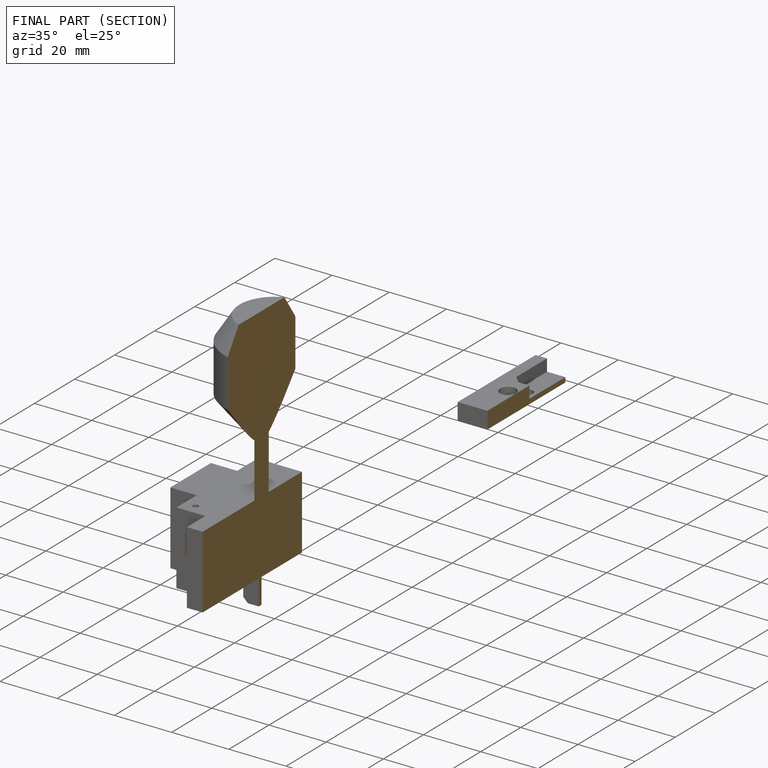
[diagram: finished part — half-section view (interior)]
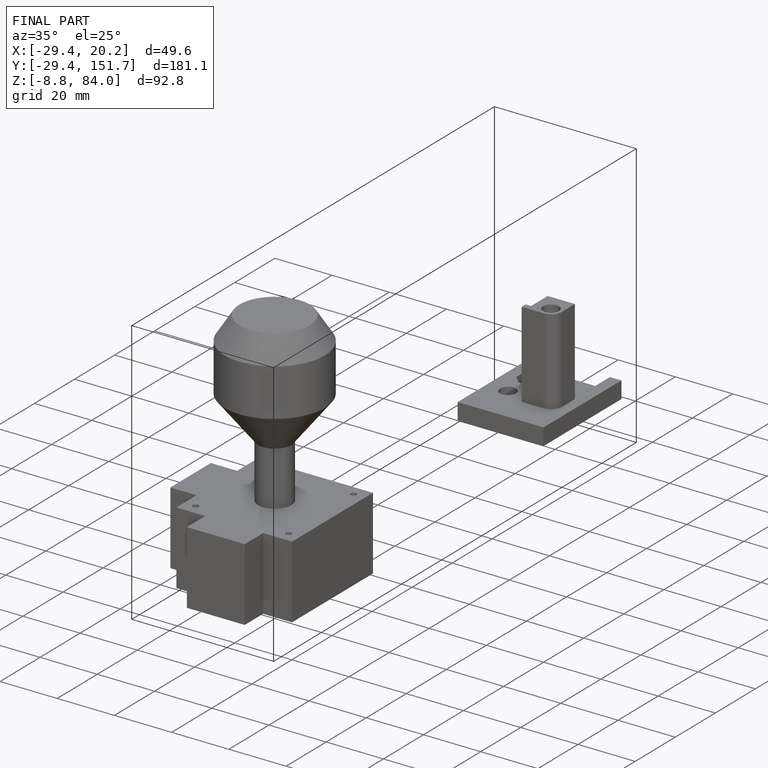
[diagram: finished part — iso view with bounding-box wireframe]
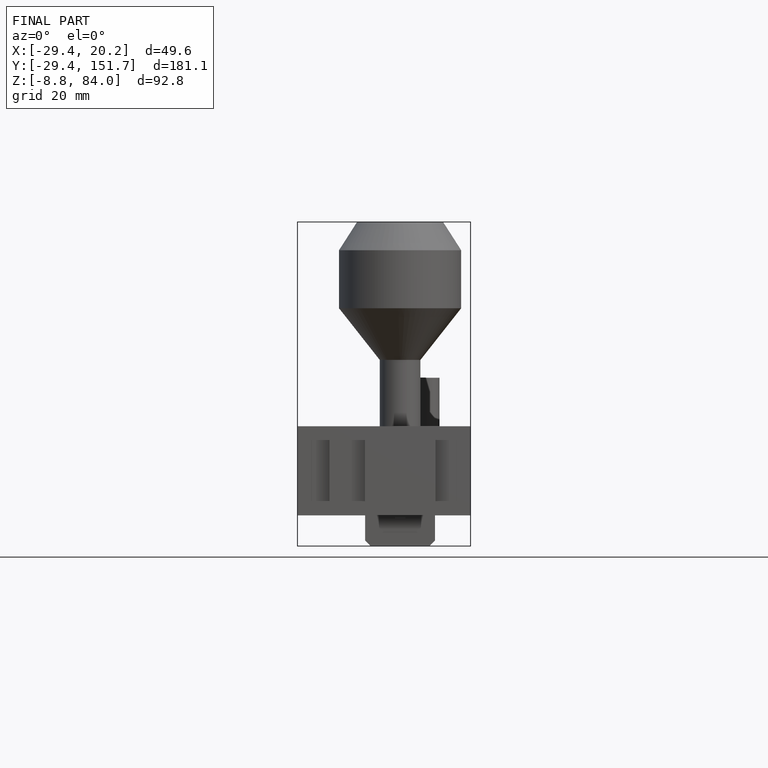
[diagram: finished part — front view with bounding-box wireframe]
